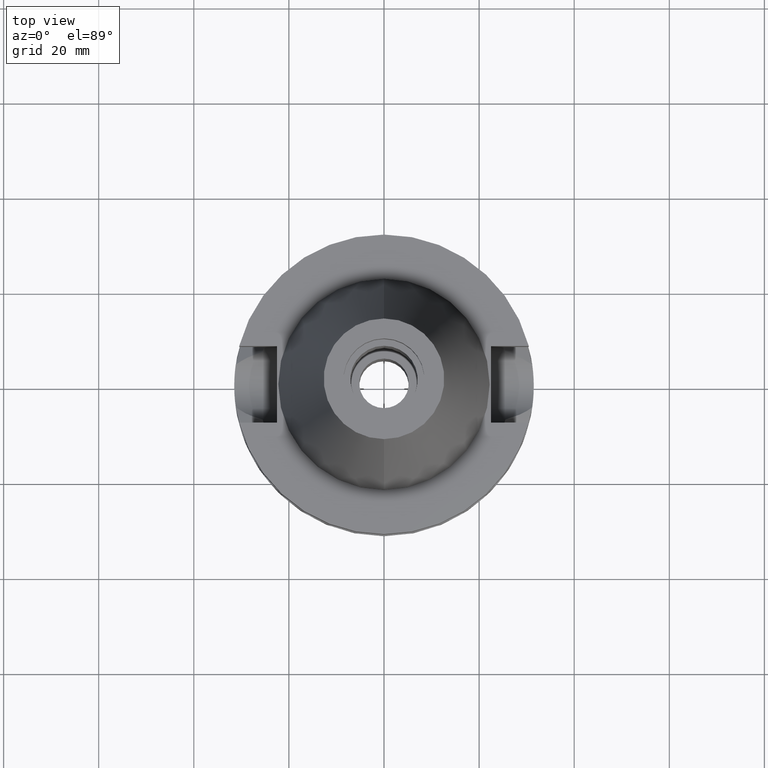
[diagram: clean part render]
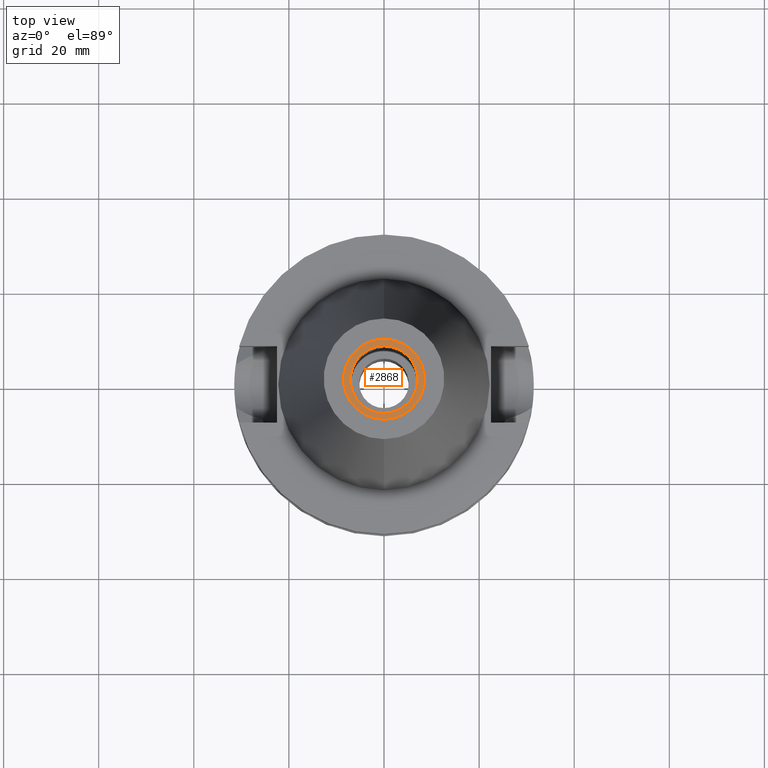
[diagram: same view with one face highlighted and labeled with its STEP entity id]
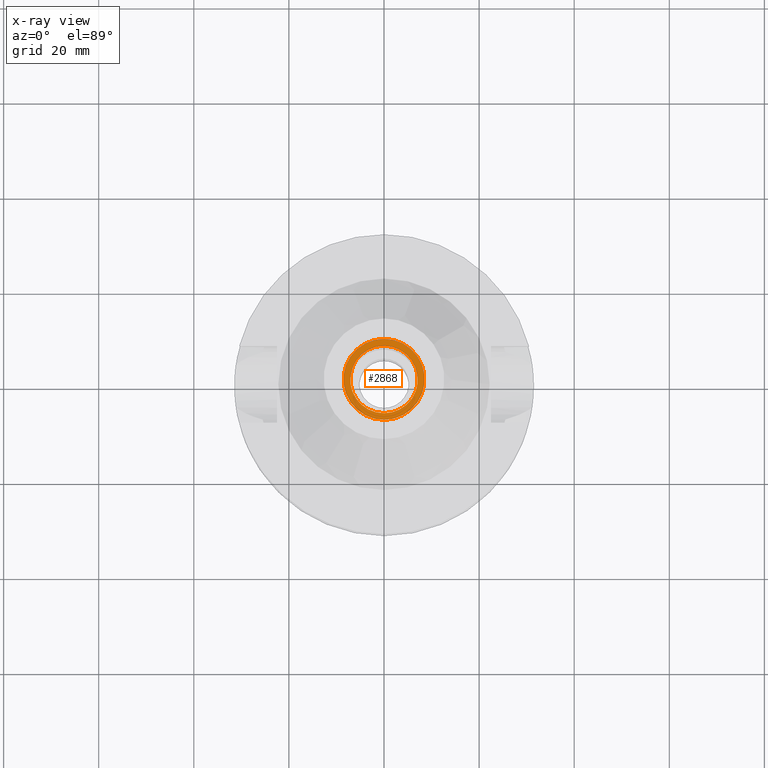
[diagram: x-ray of the same camera — body ghosted, the highlighted face saturated]
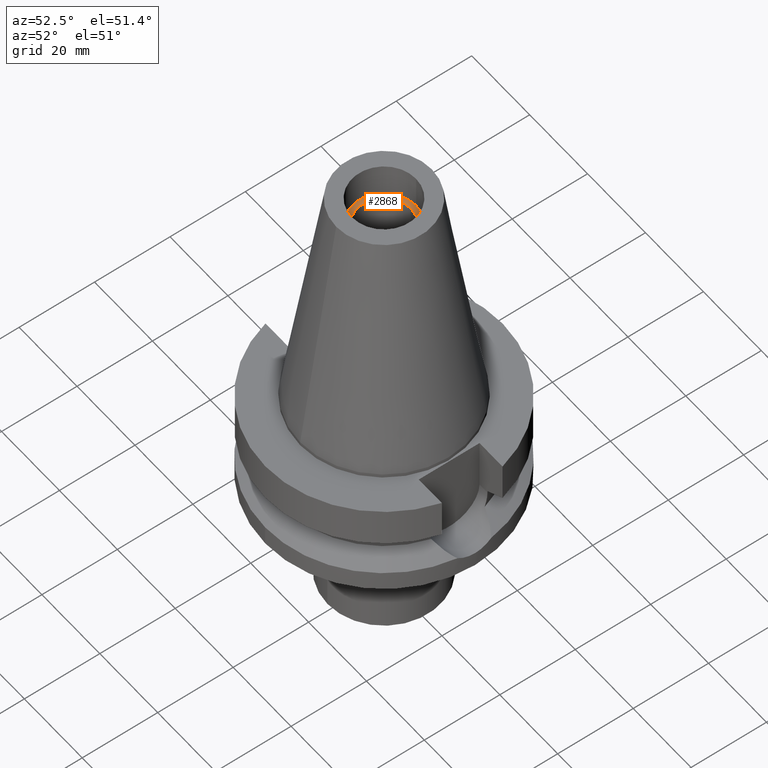
[diagram: same view with one face highlighted and labeled with its STEP entity id]
A machine part, top view. The second image highlights one B-rep face of the part: STEP entity #2868.
The next image is the same camera in x-ray: the body ghosted, the highlighted face saturated — about 0% of this face is hidden behind the body in this view.
A second angle (auxiliary view) of the same face is appended — the face is thin or edge-on in the first view.
In plain terms, the highlighted planar face has unit normal (0, 0, -1).
Its self-contained STEP definition (entity closure, byte-faithful):
#12 = DIRECTION ( 'NONE',  ( 0.0000000000000000000, 0.0000000000000000000, -1.000000000000000000 ) ) ;
#25 = CARTESIAN_POINT ( 'NONE',  ( 0.0000000000000000000, 0.0000000000000000000, 56.39999999999999858 ) ) ;
#73 = EDGE_LOOP ( 'NONE', ( #483, #2084 ) ) ;
#156 = EDGE_CURVE ( 'NONE', #923, #900, #713, .T. ) ;
#159 = CIRCLE ( 'NONE', #2210, 8.500000000000000000 ) ;
#170 = AXIS2_PLACEMENT_3D ( 'NONE', #646, #1584, #663 ) ;
#223 = DIRECTION ( 'NONE',  ( 0.0000000000000000000, 0.0000000000000000000, 1.000000000000000000 ) ) ;
#332 = DIRECTION ( 'NONE',  ( 0.0000000000000000000, 0.0000000000000000000, -1.000000000000000000 ) ) ;
#396 = EDGE_CURVE ( 'NONE', #2069, #2959, #1136, .T. ) ;
#483 = ORIENTED_EDGE ( 'NONE', *, *, #156, .F. ) ;
#524 = DIRECTION ( 'NONE',  ( 0.0000000000000000000, -1.000000000000000000, 0.0000000000000000000 ) ) ;
#646 = CARTESIAN_POINT ( 'NONE',  ( 0.0000000000000000000, 0.0000000000000000000, 56.39999999999999858 ) ) ;
#663 = DIRECTION ( 'NONE',  ( 0.0000000000000000000, 1.000000000000000000, 0.0000000000000000000 ) ) ;
#713 = CIRCLE ( 'NONE', #1931, 7.100000000000000533 ) ;
#794 = ORIENTED_EDGE ( 'NONE', *, *, #2592, .F. ) ;
#900 = VERTEX_POINT ( 'NONE', #1731 ) ;
#923 = VERTEX_POINT ( 'NONE', #1917 ) ;
#981 = CARTESIAN_POINT ( 'NONE',  ( 0.0000000000000000000, 0.0000000000000000000, 56.39999999999999858 ) ) ;
#1110 = DIRECTION ( 'NONE',  ( 0.0000000000000000000, -1.000000000000000000, 0.0000000000000000000 ) ) ;
#1136 = CIRCLE ( 'NONE', #170, 8.500000000000000000 ) ;
#1219 = DIRECTION ( 'NONE',  ( 0.0000000000000000000, 0.0000000000000000000, 1.000000000000000000 ) ) ;
#1584 = DIRECTION ( 'NONE',  ( 0.0000000000000000000, 0.0000000000000000000, -1.000000000000000000 ) ) ;
#1664 = PLANE ( 'NONE',  #2164 ) ;
#1731 = CARTESIAN_POINT ( 'NONE',  ( 0.0000000000000000000, -7.100000000000000533, 56.39999999999999858 ) ) ;
#1815 = EDGE_CURVE ( 'NONE', #900, #923, #2803, .T. ) ;
#1910 = DIRECTION ( 'NONE',  ( 0.0000000000000000000, 1.000000000000000000, 0.0000000000000000000 ) ) ;
#1917 = CARTESIAN_POINT ( 'NONE',  ( 0.0000000000000000000, 7.100000000000000533, 56.39999999999999858 ) ) ;
#1931 = AXIS2_PLACEMENT_3D ( 'NONE', #981, #1219, #1910 ) ;
#2060 = AXIS2_PLACEMENT_3D ( 'NONE', #25, #223, #2778 ) ;
#2069 = VERTEX_POINT ( 'NONE', #2886 ) ;
#2084 = ORIENTED_EDGE ( 'NONE', *, *, #1815, .F. ) ;
#2116 = FACE_OUTER_BOUND ( 'NONE', #2219, .T. ) ;
#2164 = AXIS2_PLACEMENT_3D ( 'NONE', #3020, #12, #1110 ) ;
#2190 = CARTESIAN_POINT ( 'NONE',  ( 0.0000000000000000000, -8.500000000000000000, 56.39999999999999858 ) ) ;
#2210 = AXIS2_PLACEMENT_3D ( 'NONE', #2379, #332, #524 ) ;
#2219 = EDGE_LOOP ( 'NONE', ( #2601, #794 ) ) ;
#2379 = CARTESIAN_POINT ( 'NONE',  ( 0.0000000000000000000, 0.0000000000000000000, 56.39999999999999858 ) ) ;
#2592 = EDGE_CURVE ( 'NONE', #2959, #2069, #159, .T. ) ;
#2601 = ORIENTED_EDGE ( 'NONE', *, *, #396, .F. ) ;
#2768 = FACE_BOUND ( 'NONE', #73, .T. ) ;
#2778 = DIRECTION ( 'NONE',  ( 0.0000000000000000000, -1.000000000000000000, 0.0000000000000000000 ) ) ;
#2803 = CIRCLE ( 'NONE', #2060, 7.100000000000000533 ) ;
#2868 = ADVANCED_FACE ( 'NONE', ( #2116, #2768 ), #1664, .F. ) ;
#2886 = CARTESIAN_POINT ( 'NONE',  ( 0.0000000000000000000, 8.500000000000000000, 56.39999999999999858 ) ) ;
#2959 = VERTEX_POINT ( 'NONE', #2190 ) ;
#3020 = CARTESIAN_POINT ( 'NONE',  ( 0.0000000000000000000, 0.0000000000000000000, 56.39999999999999858 ) ) ;